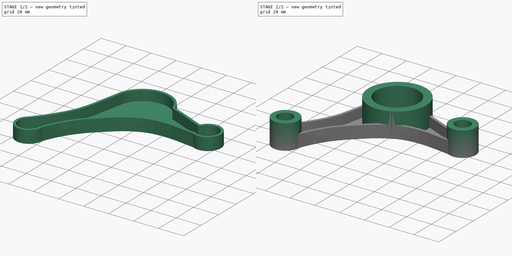
[diagram: build sequence overview — one tinted view per stage of 2, left to right]
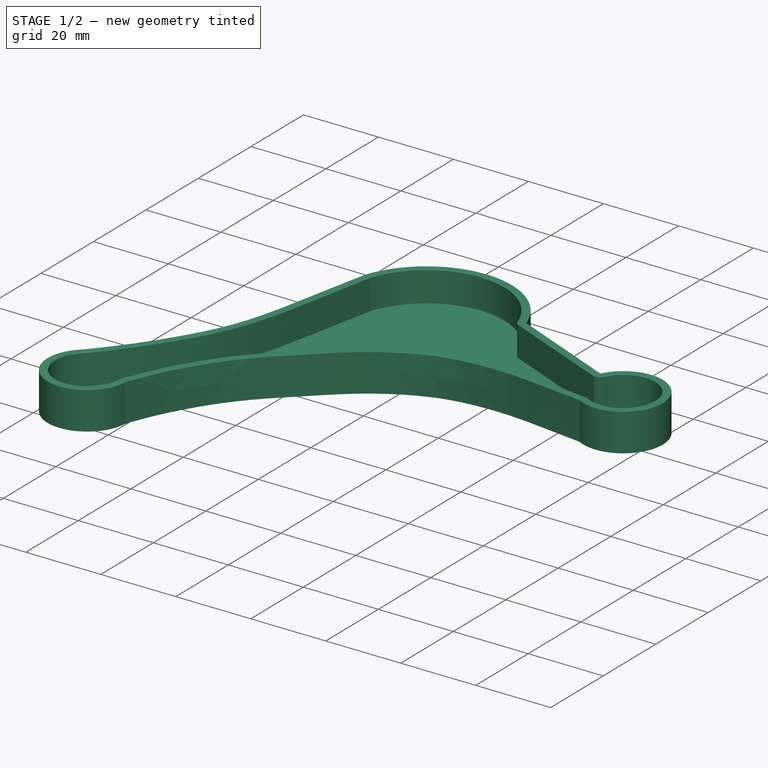
[diagram: stage 1 of 2 — iso view after this stage's code; geometry added in this stage tinted green]
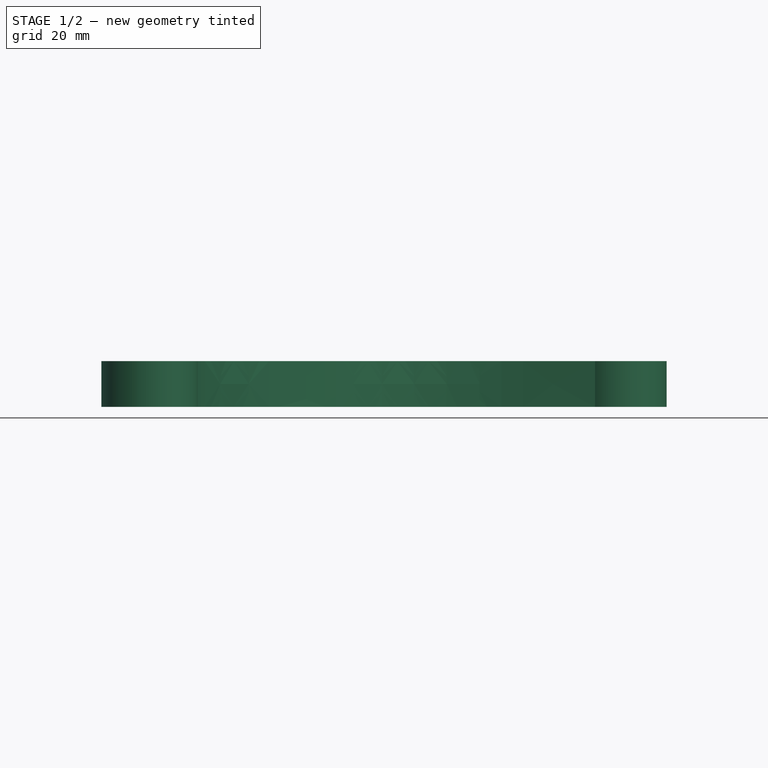
[diagram: stage 1 of 2 — front view after this stage's code; geometry added in this stage tinted green]
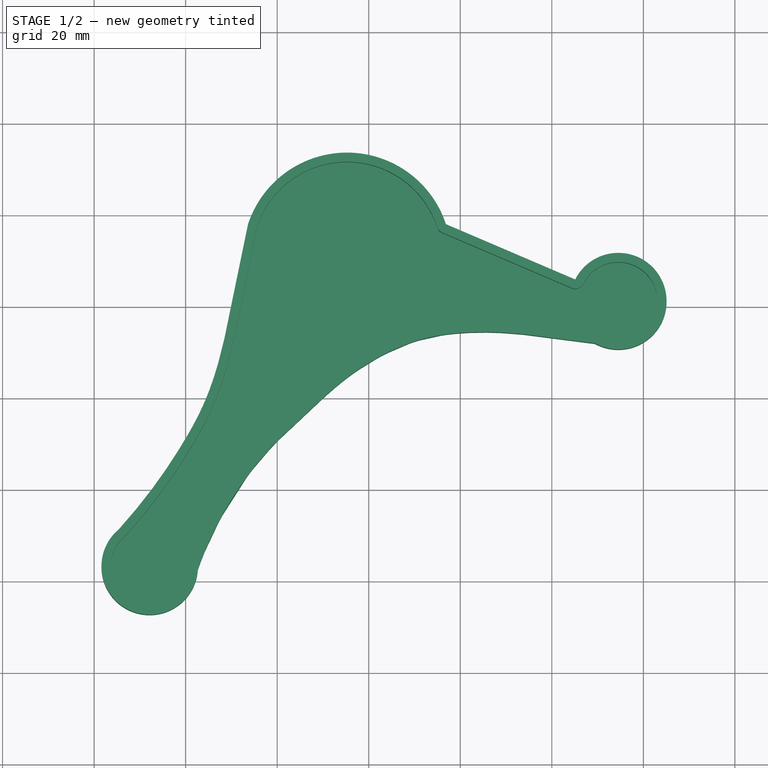
[diagram: stage 1 of 2 — top view after this stage's code; geometry added in this stage tinted green]
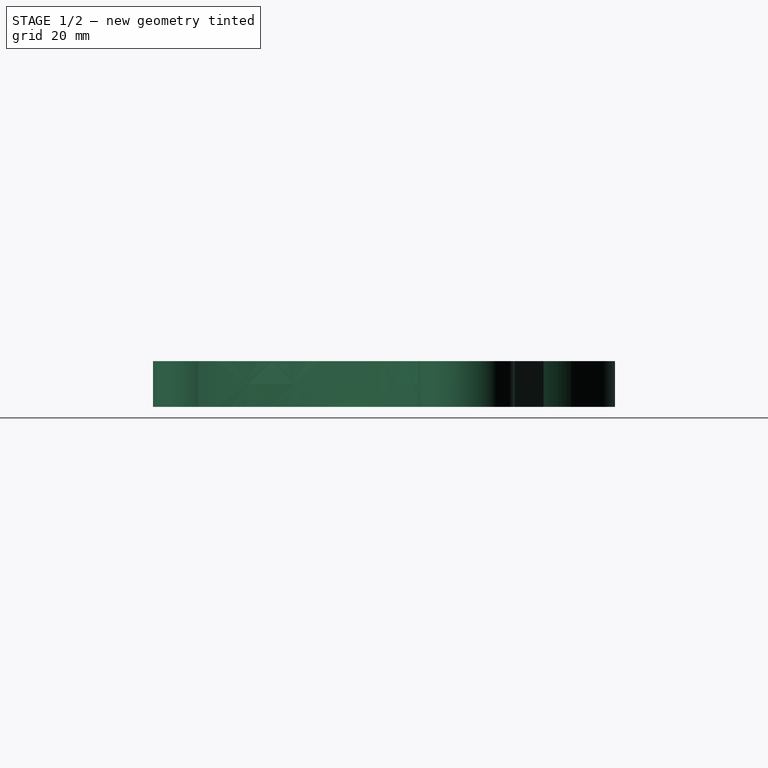
[diagram: stage 1 of 2 — right view after this stage's code; geometry added in this stage tinted green]
FCSTD DOCUMENT  (FreeCAD 0.21R33771 (Git))
Label: ex65
License: All rights reserved
LicenseURL: http://en.wikipedia.org/wiki/All_rights_reserved
objects: Sketcher::SketchObject×4, PartDesign::Pad×2, PartDesign::Thickness×1, PartDesign::Pocket×1, PartDesign::Body×1
note: 13 computed .brp shape members not serialized (recipe doc carries the construction recipe); baked Part::Feature solids carry a one-line shape summary decoded from their .brp

FEATURE [Sketcher::SketchObject] Sketch
  FullyConstrained = false
  MapMode = 5
  Support = -> [XY_Plane]
  sketch-geometry (33):
    g0: Circle CenterX=-67.8574 CenterY=-36.8146 CenterZ=0 NormalX=0 NormalY=0 NormalZ=1 AngleXU=0 Radius=10.5437
    g1: Circle CenterX=-24.7543 CenterY=30.8367 CenterZ=0 NormalX=0 NormalY=0 NormalZ=1 AngleXU=0 Radius=22.7659
    g2: Circle CenterX=34.5274 CenterY=21.1481 CenterZ=0 NormalX=0 NormalY=0 NormalZ=1 AngleXU=0 Radius=10.5437
    g3: LineSegment StartX=-3.13447 StartY=37.9691 StartZ=0 EndX=25.1064 EndY=25.8825 EndZ=0
    g4-g9: Circle x6 (B-spline internal-alignment scaffolding for g10; pole/knot coordinates omitted)
    g10: BSplineCurve PolesCount=6 KnotsCount=4 Degree=3 IsPeriodic=0
    g11-g14: GeomPoint x4 (B-spline internal-alignment scaffolding for g10; pole/knot coordinates omitted)
    g15-g23: Circle x9 (B-spline internal-alignment scaffolding for g24; pole/knot coordinates omitted)
    g24: BSplineCurve PolesCount=9 KnotsCount=7 Degree=3 IsPeriodic=0
    g25-g31: GeomPoint x7 (B-spline internal-alignment scaffolding for g24; pole/knot coordinates omitted)
    g32: GeomPoint X=-13.5916 Y=10.9953 Z=0
  constraints (21):
    c: Equal(g2,g0)
    c: PointOnObject(g3,g1)
    c: PointOnObject(g3,g2)
    c: Weight(g4) = 1
    c: PointOnObject(g10,g1)
    c: Equal(g4, g5-g9) x5
    c: PointOnObject(g10,g0)
    c: InternalAlignment(g4-g9 -> g10) x6
    c: InternalAlignment(g11-g14 -> g10) x4
    c: Weight(g15) = 1
    c: PointOnObject(g24,g2)
    c: Equal(g15,g16)
    c: Equal(g15,g17)
    c: Equal(g15,g18)
    c: PointOnObject(g18,g1)
    c: Equal(g15, g19-g23) x5
    c: PointOnObject(g24,g0)
    c: InternalAlignment(g15-g23 -> g24) x9
    c: InternalAlignment(g25-g31 -> g24) x7
    c: PointOnObject(g32,g24)
    c: PointOnObject(g32,g1)
FEATURE [Sketcher::SketchObject] Sketch001
  FullyConstrained = false
  MapMode = 5
  Support = -> [XY_Plane]
  sketch-geometry (33):
    g0: ArcOfCircle CenterX=-67.8574 CenterY=-36.8146 CenterZ=0 NormalX=0 NormalY=0 NormalZ=1 AngleXU=0 Radius=10.5437 StartAngle=2.25841 EndAngle=6.22045
    g1: ArcOfCircle CenterX=34.5274 CenterY=21.1481 CenterZ=0 NormalX=0 NormalY=0 NormalZ=1 AngleXU=0 Radius=10.5437 StartAngle=4.20826 EndAngle=8.9591
    g2: LineSegment StartX=-3.13447 StartY=37.9691 StartZ=0 EndX=25.1064 EndY=25.8825 EndZ=0
    g3: BSplineCurve PolesCount=6 KnotsCount=4 Degree=3 IsPeriodic=0
    g4-g12: Circle x9 (B-spline internal-alignment scaffolding for g13; pole/knot coordinates omitted)
    g13: BSplineCurve PolesCount=9 KnotsCount=7 Degree=3 IsPeriodic=0
    g14-g20: GeomPoint x7 (B-spline internal-alignment scaffolding for g13; pole/knot coordinates omitted)
    g21: GeomPoint X=-13.5916 Y=10.9953 Z=0
    g22: ArcOfCircle CenterX=-24.7543 CenterY=30.8367 CenterZ=0 NormalX=0 NormalY=0 NormalZ=1 AngleXU=0 Radius=22.7659 StartAngle=0.31866 EndAngle=2.82152
    g23-g28: Circle x6 (B-spline internal-alignment scaffolding for g3; pole/knot coordinates omitted)
    g29-g32: GeomPoint x4 (B-spline internal-alignment scaffolding for g3; pole/knot coordinates omitted)
  constraints (25):
    c: Equal(g1,g0)
    c: Weight(g4) = 1
    c: Equal(g4, g5-g12) x8
    c: InternalAlignment(g4-g12 -> g13) x9
    c: InternalAlignment(g14-g20 -> g13) x7
    c: PointOnObject(g21,g13)
    c: Coincident(g22,g2)
    c: Coincident(g1,g2)
    c: Coincident(g0,g13)
    c: Coincident(g1,g13)
    c: PointOnObject(g22,g3)
    c: Coincident(g3,g0)
    c: InternalAlignment(g23,g3)
    c: Weight(g23) = 1
    c: InternalAlignment(g24,g3)
    c: Equal(g24,g23)
    c: InternalAlignment(g25,g3)
    c: Equal(g25,g23)
    c: InternalAlignment(g26,g3)
    c: Equal(g26,g23)
    c: InternalAlignment(g27,g3)
    c: Equal(g27,g23)
    c: InternalAlignment(g28,g3)
    c: Equal(g28,g23)
    c: InternalAlignment(g29-g32 -> g3) x4
FEATURE [PartDesign::Pad] Pad
  Direction = (0,0,1)
  Length = 10
  Length2 = 10
  Profile = -> Sketch001
  ReferenceAxis = -> Sketch001 [N_Axis]
  Refine = true
  Type = 0
FEATURE [PartDesign::Thickness] Thickness
  Base = -> Pad [Face8]
  BaseFeature = -> Pad
  Intersection = false
  Join = 0
  Mode = 0
  Refine = true
  Reversed = true
  SupportTransform = false
  Value = 2
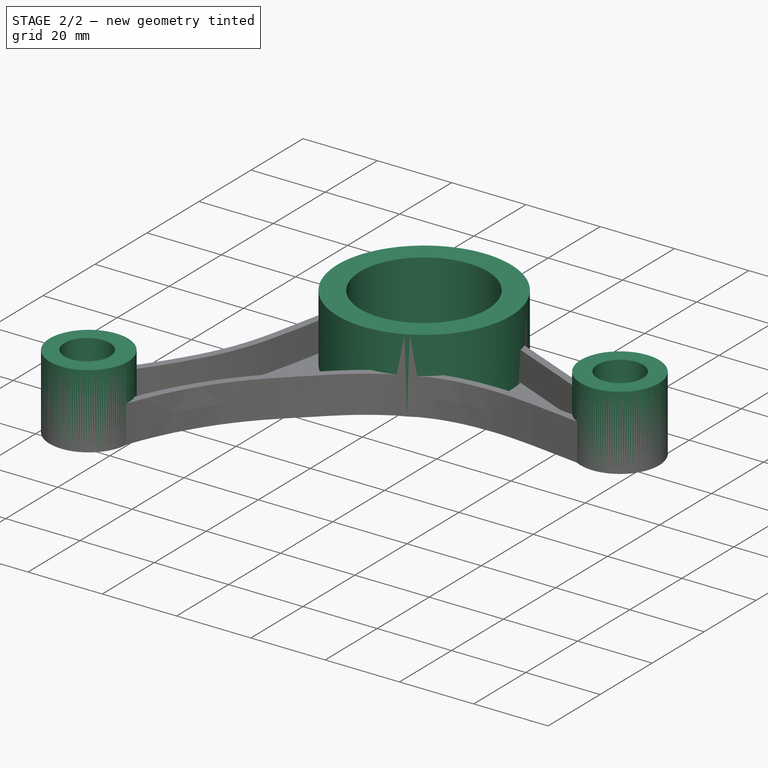
[diagram: stage 2 of 2 — iso view after this stage's code; geometry added in this stage tinted green]
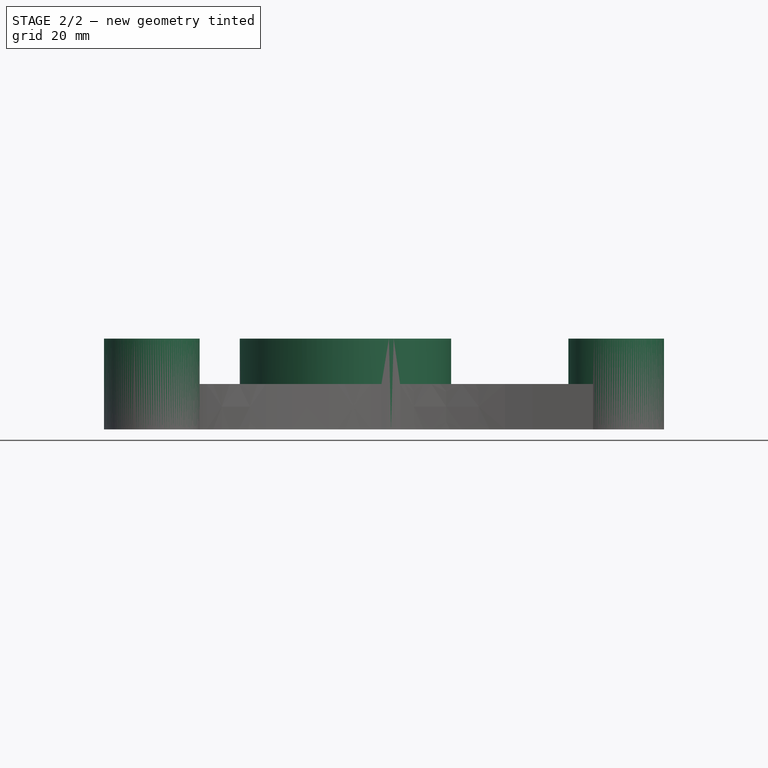
[diagram: stage 2 of 2 — front view after this stage's code; geometry added in this stage tinted green]
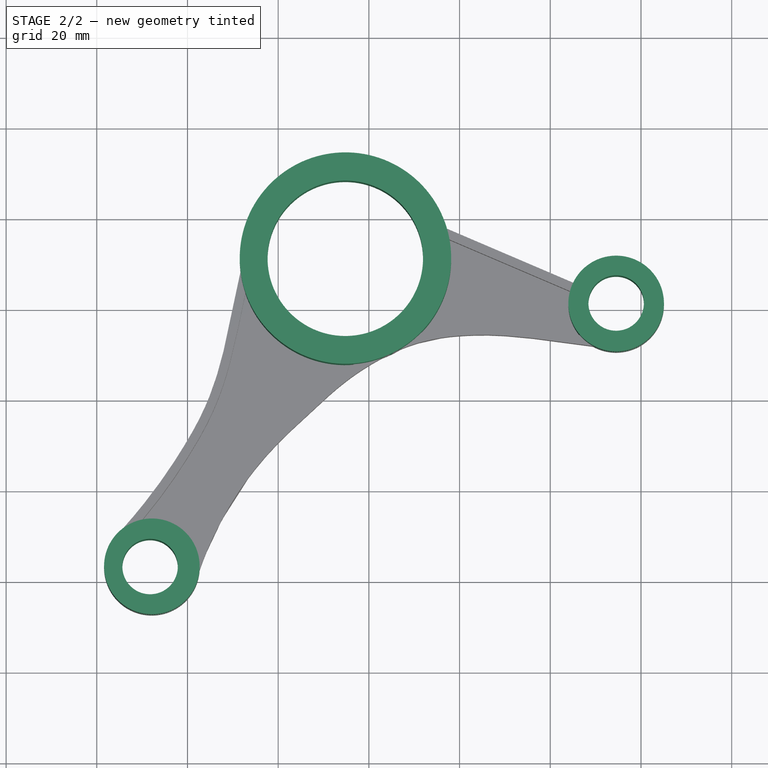
[diagram: stage 2 of 2 — top view after this stage's code; geometry added in this stage tinted green]
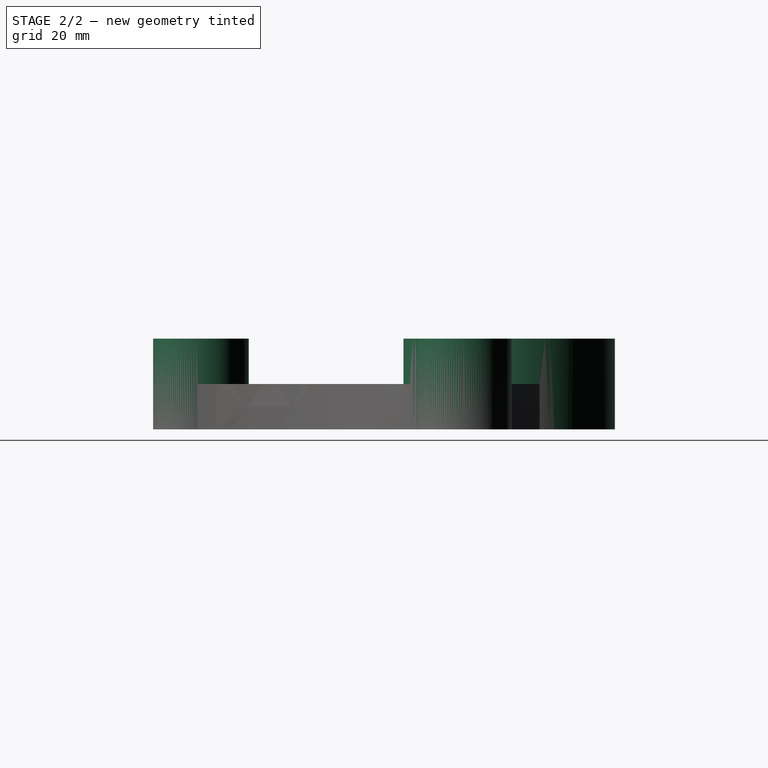
[diagram: stage 2 of 2 — right view after this stage's code; geometry added in this stage tinted green]
FEATURE [Sketcher::SketchObject] Sketch002
  FullyConstrained = false
  MapMode = 5
  Support = -> [XY_Plane]
  sketch-geometry (4):
    g0: Circle CenterX=-67.8574 CenterY=-36.8146 CenterZ=0 NormalX=0 NormalY=0 NormalZ=1 AngleXU=0 Radius=10.5437
    g1: Circle CenterX=-25.1662 CenterY=31.1589 CenterZ=0 NormalX=0 NormalY=0 NormalZ=1 AngleXU=0 Radius=23.3163
    g2: Circle CenterX=34.5274 CenterY=21.1481 CenterZ=0 NormalX=0 NormalY=0 NormalZ=1 AngleXU=0 Radius=10.5437
    g3: GeomPoint X=-13.5682 Y=10.9318 Z=0
  constraints (2):
    c: Equal(g2,g0)
    c: PointOnObject(g3,g1)
FEATURE [PartDesign::Pad] Pad001
  BaseFeature = -> Thickness
  Direction = (0,0,1)
  Length = 20
  Length2 = 10
  Profile = -> Sketch002
  ReferenceAxis = -> Sketch002 [N_Axis]
  Refine = true
  Type = 0
FEATURE [Sketcher::SketchObject] Sketch003
  FullyConstrained = false
  MapMode = 5
  Placement = pos=(0,0,20) rot=(0,0,1;0rad)
  Support = -> [Pad001]
  sketch-geometry (3):
    g0: Circle CenterX=-25.1984 CenterY=31.1163 CenterZ=0 NormalX=0 NormalY=0 NormalZ=1 AngleXU=0 Radius=17.1429
    g1: Circle CenterX=34.5259 CenterY=21.2515 CenterZ=0 NormalX=0 NormalY=0 NormalZ=1 AngleXU=0 Radius=6.11764
    g2: Circle CenterX=-68.246 CenterY=-36.8677 CenterZ=0 NormalX=0 NormalY=0 NormalZ=1 AngleXU=0 Radius=6.11764
  constraints (1):
    c: Equal(g2,g1)
FEATURE [PartDesign::Pocket] Pocket
  BaseFeature = -> Pad001
  Direction = (0,0,-1)
  Length = 5
  Length2 = 5
  Profile = -> Sketch003
  ReferenceAxis = -> Sketch003 [N_Axis]
  Refine = true
  Type = 1
FEATURE [PartDesign::Body] Body
  Group = -> [Sketch,Sketch001,Pad,Thickness,Sketch002,Pad001,Sketch003,Pocket]
  Origin = -> Origin
  Tip = -> Pocket
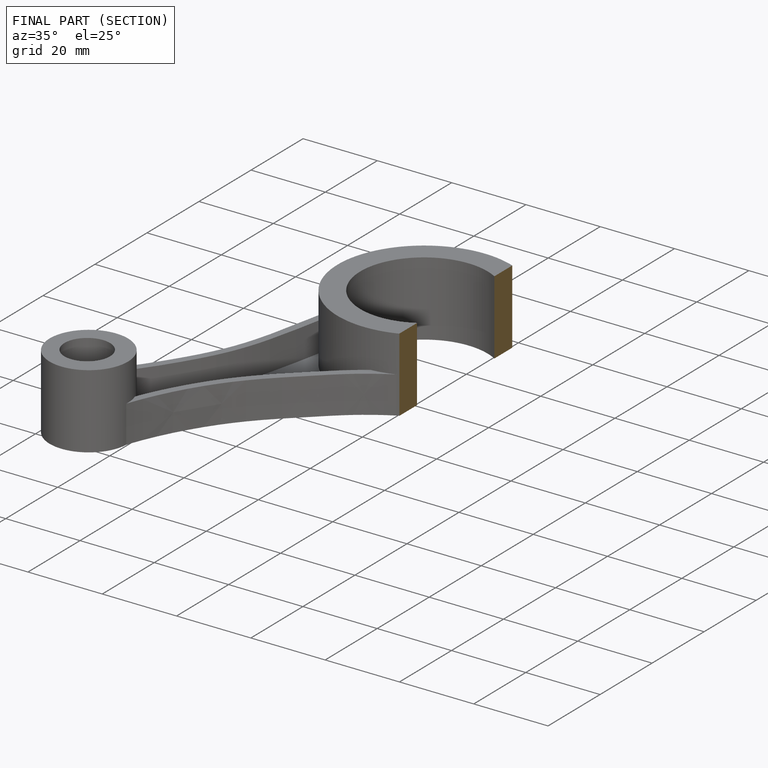
[diagram: finished part — half-section view (interior)]
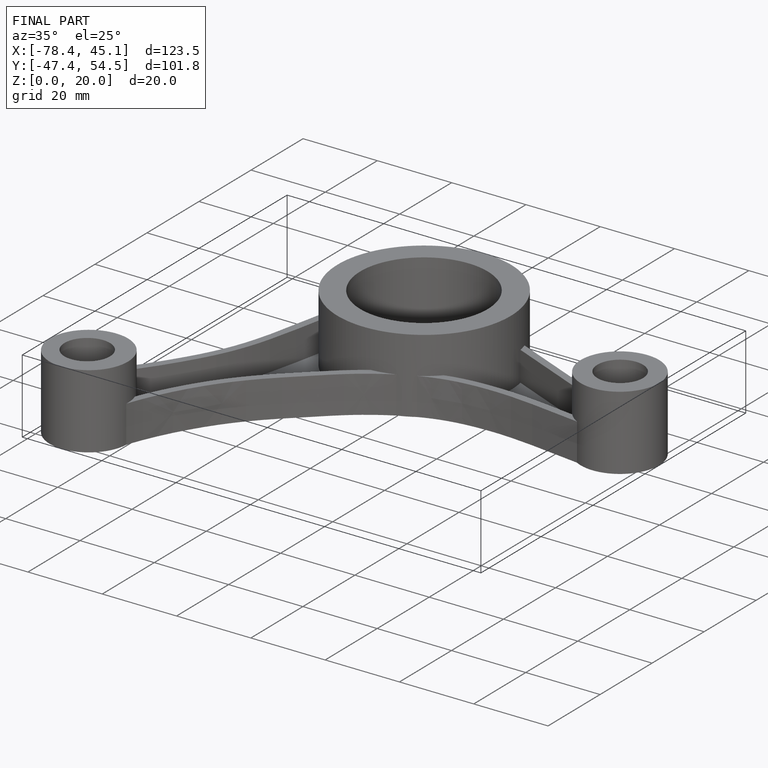
[diagram: finished part — iso view with bounding-box wireframe]
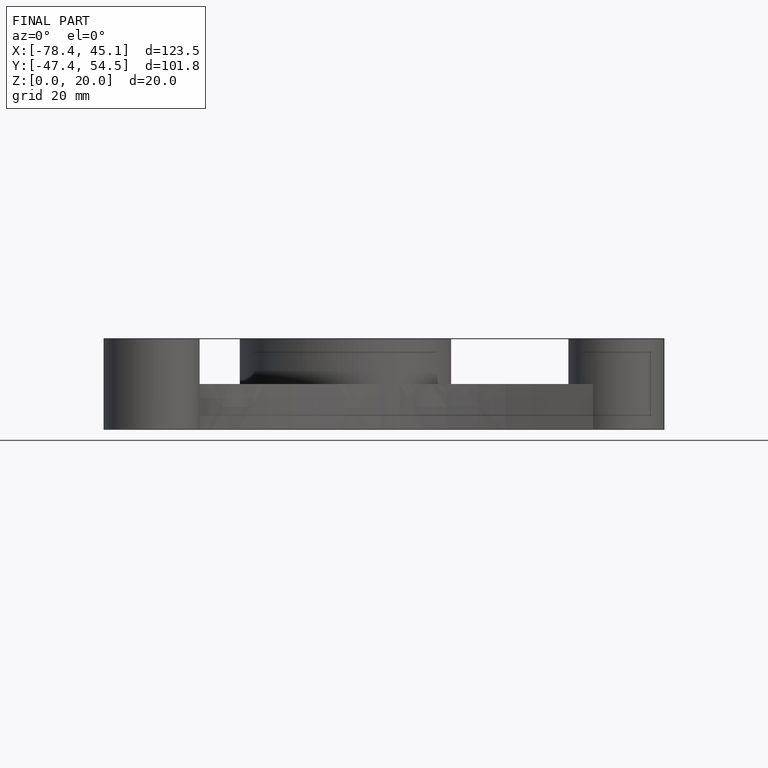
[diagram: finished part — front view with bounding-box wireframe]
